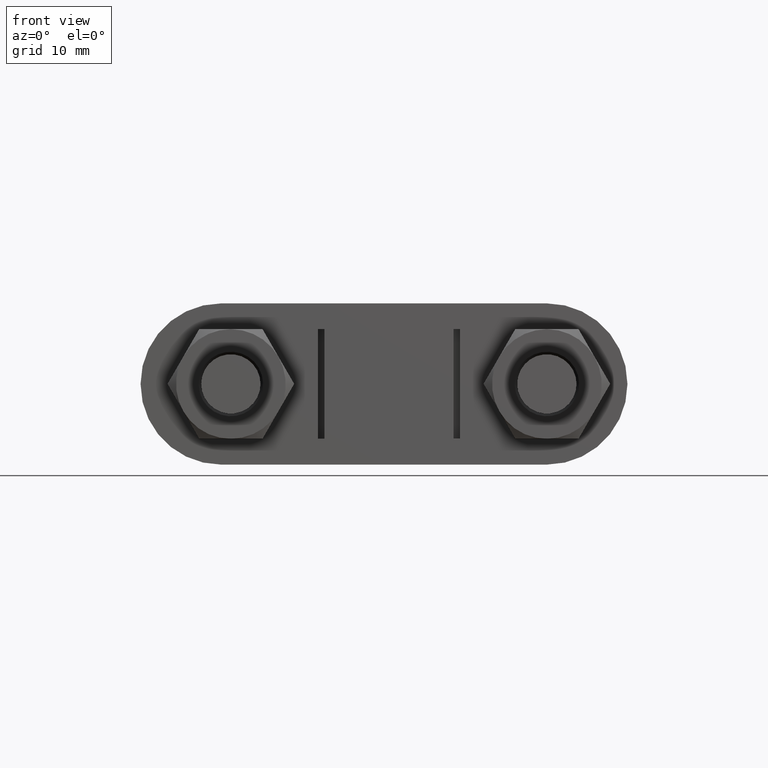
[diagram: clean part render]
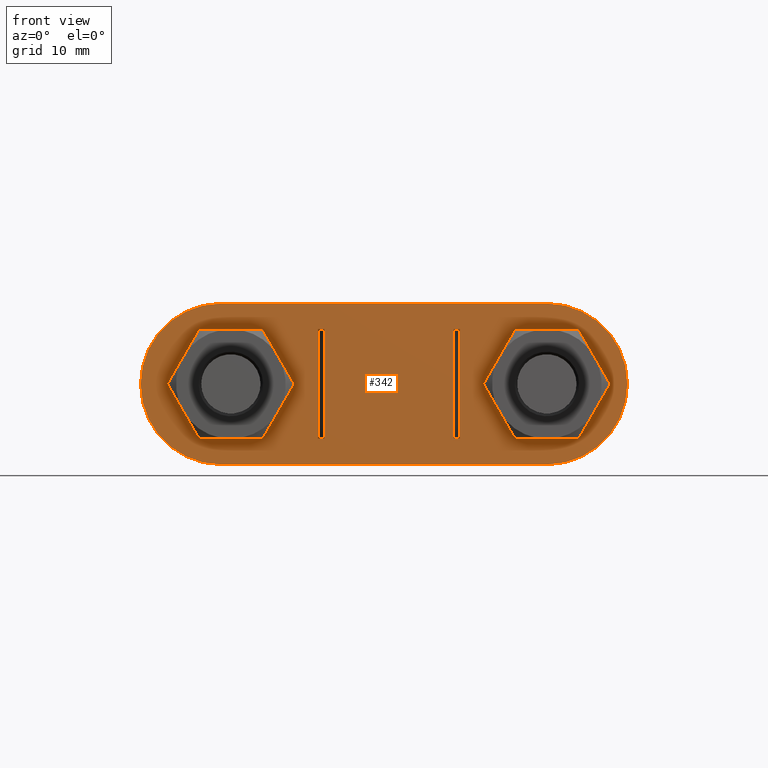
[diagram: same view with one face highlighted and labeled with its STEP entity id]
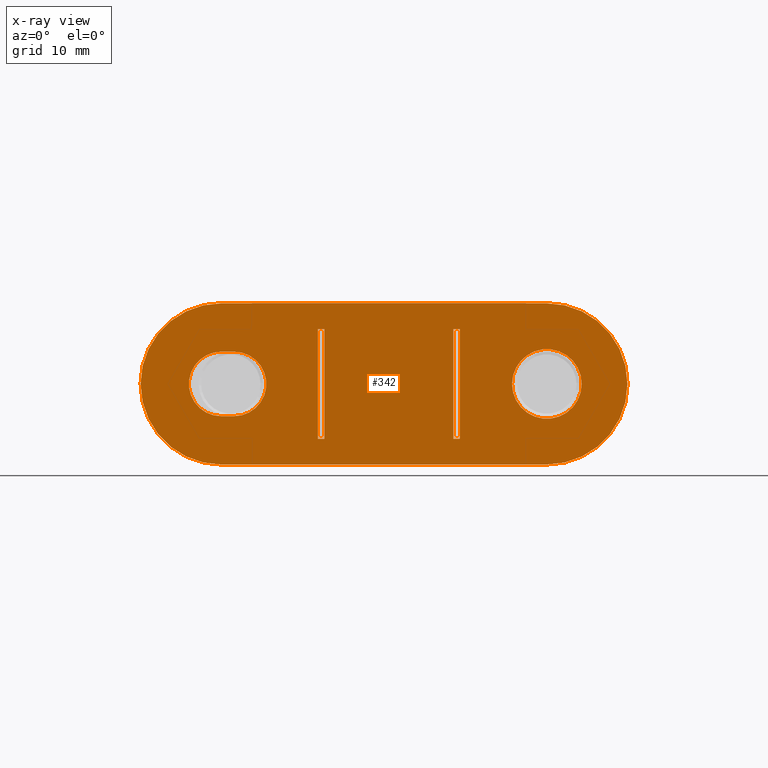
[diagram: x-ray of the same camera — body ghosted, the highlighted face saturated]
A machine part, front view. The second image highlights one B-rep face of the part: STEP entity #342.
The next image is the same camera in x-ray: the body ghosted, the highlighted face saturated — about 0% of this face is hidden behind the body in this view.
In plain terms, the highlighted planar face has unit normal (0, 1, -0).
Its self-contained STEP definition (entity closure, byte-faithful):
#342 = ADVANCED_FACE( '', ( #547, #548, #549, #550, #551 ), #552, .F. );
#547 = FACE_BOUND( '', #1475, .T. );
#548 = FACE_OUTER_BOUND( '', #1476, .T. );
#549 = FACE_BOUND( '', #1477, .T. );
#550 = FACE_BOUND( '', #1478, .T. );
#551 = FACE_BOUND( '', #1479, .T. );
#552 = PLANE( '', #1480 );
#1475 = EDGE_LOOP( '', ( #2094, #2095, #2096, #2097 ) );
#1476 = EDGE_LOOP( '', ( #2098, #2099, #2100, #2101, #2102, #2103 ) );
#1477 = EDGE_LOOP( '', ( #2104 ) );
#1478 = EDGE_LOOP( '', ( #2105, #2106, #2107, #2108 ) );
#1479 = EDGE_LOOP( '', ( #2109, #2110, #2111, #2112 ) );
#1480 = AXIS2_PLACEMENT_3D( '', #2113, #2114, #2115 );
#2094 = ORIENTED_EDGE( '', *, *, #2531, .F. );
#2095 = ORIENTED_EDGE( '', *, *, #2532, .T. );
#2096 = ORIENTED_EDGE( '', *, *, #2533, .T. );
#2097 = ORIENTED_EDGE( '', *, *, #2534, .F. );
#2098 = ORIENTED_EDGE( '', *, *, #2535, .F. );
#2099 = ORIENTED_EDGE( '', *, *, #2536, .F. );
#2100 = ORIENTED_EDGE( '', *, *, #2537, .F. );
#2101 = ORIENTED_EDGE( '', *, *, #2538, .F. );
#2102 = ORIENTED_EDGE( '', *, *, #2539, .F. );
#2103 = ORIENTED_EDGE( '', *, *, #2540, .F. );
#2104 = ORIENTED_EDGE( '', *, *, #2541, .T. );
#2105 = ORIENTED_EDGE( '', *, *, #2542, .F. );
#2106 = ORIENTED_EDGE( '', *, *, #2543, .F. );
#2107 = ORIENTED_EDGE( '', *, *, #2544, .F. );
#2108 = ORIENTED_EDGE( '', *, *, #2545, .F. );
#2109 = ORIENTED_EDGE( '', *, *, #2546, .T. );
#2110 = ORIENTED_EDGE( '', *, *, #2547, .T. );
#2111 = ORIENTED_EDGE( '', *, *, #2548, .F. );
#2112 = ORIENTED_EDGE( '', *, *, #2549, .F. );
#2113 = CARTESIAN_POINT( '', ( -26.0010000000000, 30.3000000000001, 3.06562700418712E-013 ) );
#2114 = DIRECTION( '', ( 1.88900066577584E-016, 1.00000000000000, -1.00538905774030E-016 ) );
#2115 = DIRECTION( '', ( 1.16573417585698E-014, 1.00538905774028E-016, 1.00000000000000 ) );
#2531 = EDGE_CURVE( '', #2865, #2866, #2867, .T. );
#2532 = EDGE_CURVE( '', #2865, #2868, #2869, .T. );
#2533 = EDGE_CURVE( '', #2868, #2870, #2871, .T. );
#2534 = EDGE_CURVE( '', #2866, #2870, #2872, .T. );
#2535 = EDGE_CURVE( '', #2873, #2874, #2875, .T. );
#2536 = EDGE_CURVE( '', #2876, #2873, #2877, .T. );
#2537 = EDGE_CURVE( '', #2878, #2876, #2879, .T. );
#2538 = EDGE_CURVE( '', #2880, #2878, #2881, .T. );
#2539 = EDGE_CURVE( '', #2882, #2880, #2883, .T. );
#2540 = EDGE_CURVE( '', #2874, #2882, #2884, .T. );
#2541 = EDGE_CURVE( '', #2885, #2885, #2886, .T. );
#2542 = EDGE_CURVE( '', #2887, #2888, #2889, .T. );
#2543 = EDGE_CURVE( '', #2890, #2887, #2891, .T. );
#2544 = EDGE_CURVE( '', #2892, #2890, #2893, .T. );
#2545 = EDGE_CURVE( '', #2888, #2892, #2894, .T. );
#2546 = EDGE_CURVE( '', #2895, #2896, #2897, .T. );
#2547 = EDGE_CURVE( '', #2896, #2898, #2899, .T. );
#2548 = EDGE_CURVE( '', #2900, #2898, #2901, .T. );
#2549 = EDGE_CURVE( '', #2895, #2900, #2902, .T. );
#2865 = VERTEX_POINT( '', #3603 );
#2866 = VERTEX_POINT( '', #3604 );
#2867 = LINE( '', #3605, #3606 );
#2868 = VERTEX_POINT( '', #3607 );
#2869 = LINE( '', #3608, #3609 );
#2870 = VERTEX_POINT( '', #3610 );
#2871 = LINE( '', #3611, #3612 );
#2872 = LINE( '', #3613, #3614 );
#2873 = VERTEX_POINT( '', #3615 );
#2874 = VERTEX_POINT( '', #3616 );
#2875 = CIRCLE( '', #3617, 12.5000000000000 );
#2876 = VERTEX_POINT( '', #3618 );
#2877 = CIRCLE( '', #3619, 12.5000000000000 );
#2878 = VERTEX_POINT( '', #3620 );
#2879 = LINE( '', #3621, #3622 );
#2880 = VERTEX_POINT( '', #3623 );
#2881 = CIRCLE( '', #3624, 12.5000000000000 );
#2882 = VERTEX_POINT( '', #3625 );
#2883 = CIRCLE( '', #3626, 12.5000000000000 );
#2884 = LINE( '', #3627, #3628 );
#2885 = VERTEX_POINT( '', #3629 );
#2886 = CIRCLE( '', #3630, 5.40000000000000 );
#2887 = VERTEX_POINT( '', #3631 );
#2888 = VERTEX_POINT( '', #3632 );
#2889 = CIRCLE( '', #3633, 5.00000000000000 );
#2890 = VERTEX_POINT( '', #3634 );
#2891 = LINE( '', #3635, #3636 );
#2892 = VERTEX_POINT( '', #3637 );
#2893 = CIRCLE( '', #3638, 5.00000000000000 );
#2894 = LINE( '', #3639, #3640 );
#2895 = VERTEX_POINT( '', #3641 );
#2896 = VERTEX_POINT( '', #3642 );
#2897 = LINE( '', #3643, #3644 );
#2898 = VERTEX_POINT( '', #3645 );
#2899 = LINE( '', #3646, #3647 );
#2900 = VERTEX_POINT( '', #3648 );
#2901 = LINE( '', #3649, #3650 );
#2902 = LINE( '', #3651, #3652 );
#3603 = CARTESIAN_POINT( '', ( -11.0010000000001, 30.3000000000000, -8.49999999999987 ) );
#3604 = CARTESIAN_POINT( '', ( -10.0010000000001, 30.3000000000000, -8.49999999999988 ) );
#3605 = CARTESIAN_POINT( '', ( -11.0010000000001, 30.3000000000000, -8.49999999999987 ) );
#3606 = VECTOR( '', #4057, 1000.00000000000 );
#3607 = CARTESIAN_POINT( '', ( -11.0009999999999, 30.3000000000000, 8.50000000000013 ) );
#3608 = CARTESIAN_POINT( '', ( -11.0010000000001, 30.3000000000000, -8.49999999999987 ) );
#3609 = VECTOR( '', #4058, 1000.00000000000 );
#3610 = CARTESIAN_POINT( '', ( -10.0009999999999, 30.3000000000000, 8.50000000000012 ) );
#3611 = CARTESIAN_POINT( '', ( -11.0009999999999, 30.3000000000000, 8.50000000000013 ) );
#3612 = VECTOR( '', #4059, 1000.00000000000 );
#3613 = CARTESIAN_POINT( '', ( -10.0010000000001, 30.3000000000000, -8.49999999999988 ) );
#3614 = VECTOR( '', #4060, 1000.00000000000 );
#3615 = CARTESIAN_POINT( '', ( -38.5010000000000, 30.3000000000001, 4.52279472400835E-013 ) );
#3616 = CARTESIAN_POINT( '', ( -26.0009999999999, 30.3000000000001, 12.5000000000003 ) );
#3617 = AXIS2_PLACEMENT_3D( '', #4061, #4062, #4063 );
#3618 = CARTESIAN_POINT( '', ( -26.0010000000002, 30.3000000000000, -12.4999999999997 ) );
#3619 = AXIS2_PLACEMENT_3D( '', #4064, #4065, #4066 );
#3620 = CARTESIAN_POINT( '', ( 24.4989999999999, 30.3000000000000, -12.5000000000003 ) );
#3621 = CARTESIAN_POINT( '', ( 24.4989999999999, 30.3000000000000, -12.5000000000003 ) );
#3622 = VECTOR( '', #4067, 1000.00000000000 );
#3623 = CARTESIAN_POINT( '', ( 36.9990000000000, 30.3000000000000, -4.20910936467282E-013 ) );
#3624 = AXIS2_PLACEMENT_3D( '', #4068, #4069, #4070 );
#3625 = CARTESIAN_POINT( '', ( 24.4990000000002, 30.3000000000000, 12.4999999999997 ) );
#3626 = AXIS2_PLACEMENT_3D( '', #4071, #4072, #4073 );
#3627 = CARTESIAN_POINT( '', ( -26.0009999999999, 30.3000000000001, 12.5000000000003 ) );
#3628 = VECTOR( '', #4074, 1000.00000000000 );
#3629 = CARTESIAN_POINT( '', ( 29.8990000000000, 30.3000000000000, -3.43347980409366E-013 ) );
#3630 = AXIS2_PLACEMENT_3D( '', #4075, #4076, #4077 );
#3631 = CARTESIAN_POINT( '', ( -26.0010000000000, 30.2999984999318, 5.00000000000031 ) );
#3632 = CARTESIAN_POINT( '', ( -26.0010000000001, 30.2999984999318, -4.99999999999969 ) );
#3633 = AXIS2_PLACEMENT_3D( '', #4078, #4079, #4080 );
#3634 = CARTESIAN_POINT( '', ( -24.0009999999999, 30.2999984999318, 5.00000000000029 ) );
#3635 = CARTESIAN_POINT( '', ( -24.0009999999999, 30.2999984999318, 5.00000000000029 ) );
#3636 = VECTOR( '', #4081, 1000.00000000000 );
#3637 = CARTESIAN_POINT( '', ( -24.0010000000000, 30.2999984999318, -4.99999999999971 ) );
#3638 = AXIS2_PLACEMENT_3D( '', #4082, #4083, #4084 );
#3639 = CARTESIAN_POINT( '', ( -26.0010000000001, 30.2999984999318, -4.99999999999969 ) );
#3640 = VECTOR( '', #4085, 1000.00000000000 );
#3641 = CARTESIAN_POINT( '', ( 10.9989999999999, 30.3000000000000, -8.50000000000013 ) );
#3642 = CARTESIAN_POINT( '', ( 9.99899999999991, 30.3000000000000, -8.50000000000012 ) );
#3643 = CARTESIAN_POINT( '', ( 10.9989999999999, 30.3000000000000, -8.50000000000013 ) );
#3644 = VECTOR( '', #4086, 1000.00000000000 );
#3645 = CARTESIAN_POINT( '', ( 9.99900000000011, 30.3000000000000, 8.49999999999989 ) );
#3646 = CARTESIAN_POINT( '', ( 9.99899999999991, 30.3000000000000, -8.50000000000012 ) );
#3647 = VECTOR( '', #4087, 1000.00000000000 );
#3648 = CARTESIAN_POINT( '', ( 10.9990000000001, 30.3000000000000, 8.49999999999987 ) );
#3649 = CARTESIAN_POINT( '', ( 10.9990000000001, 30.3000000000000, 8.49999999999988 ) );
#3650 = VECTOR( '', #4088, 1000.00000000000 );
#3651 = CARTESIAN_POINT( '', ( 10.9989999999999, 30.3000000000000, -8.50000000000013 ) );
#3652 = VECTOR( '', #4089, 1000.00000000000 );
#4057 = DIRECTION( '', ( 1.00000000000000, -1.88900066577585E-016, -1.16573417585698E-014 ) );
#4058 = DIRECTION( '', ( 1.18177092592765E-014, 3.78303564880801E-016, 1.00000000000000 ) );
#4059 = DIRECTION( '', ( 1.00000000000000, -1.88900066577585E-016, -1.16573417585698E-014 ) );
#4060 = DIRECTION( '', ( 1.18177092592765E-014, 3.78303564880801E-016, 1.00000000000000 ) );
#4061 = CARTESIAN_POINT( '', ( -26.0010000000000, 30.3000000000001, 3.06562700418712E-013 ) );
#4062 = DIRECTION( '', ( 1.88900066577584E-016, 1.00000000000000, -1.00538905774030E-016 ) );
#4063 = DIRECTION( '', ( -1.00000000000000, 1.88900066577585E-016, 1.15185638804917E-014 ) );
#4064 = CARTESIAN_POINT( '', ( -26.0010000000000, 30.3000000000001, 3.10032147370666E-013 ) );
#4065 = DIRECTION( '', ( 1.88900066577584E-016, 1.00000000000000, -1.00538905774030E-016 ) );
#4066 = DIRECTION( '', ( -1.13797860024136E-014, -1.00538905774028E-016, -1.00000000000000 ) );
#4067 = DIRECTION( '', ( -1.00000000000000, 1.88900066577585E-016, 1.16573417585698E-014 ) );
#4068 = CARTESIAN_POINT( '', ( 24.4990000000000, 30.3000000000000, -2.78663611437113E-013 ) );
#4069 = DIRECTION( '', ( 1.88900066577584E-016, 1.00000000000000, -1.00538905774030E-016 ) );
#4070 = DIRECTION( '', ( 1.00000000000000, -1.88900066577585E-016, -1.15185638804917E-014 ) );
#4071 = CARTESIAN_POINT( '', ( 24.4990000000000, 30.3000000000000, -2.82133058389066E-013 ) );
#4072 = DIRECTION( '', ( 1.88900066577584E-016, 1.00000000000000, -1.00538905774030E-016 ) );
#4073 = DIRECTION( '', ( 1.11022302462573E-014, 1.00538905774028E-016, 1.00000000000000 ) );
#4074 = DIRECTION( '', ( 1.00000000000000, -1.88900066577585E-016, -1.16573417585698E-014 ) );
#4075 = CARTESIAN_POINT( '', ( 24.4990000000000, 30.3000000000000, -2.80398334913089E-013 ) );
#4076 = DIRECTION( '', ( 1.88900066577584E-016, 1.00000000000000, -1.00538905774030E-016 ) );
#4077 = DIRECTION( '', ( 1.00000000000000, -1.88900066577585E-016, -1.16573417585698E-014 ) );
#4078 = CARTESIAN_POINT( '', ( -26.0010000000000, 30.2999984999318, 3.08297424045504E-013 ) );
#4079 = DIRECTION( '', ( -1.88900066577584E-016, -1.00000000000000, 1.00538905774030E-016 ) );
#4080 = DIRECTION( '', ( 1.16573417585698E-014, 1.00538905774028E-016, 1.00000000000000 ) );
#4081 = DIRECTION( '', ( -1.00000000000000, 1.88900066577585E-016, 1.16573417585698E-014 ) );
#4082 = CARTESIAN_POINT( '', ( -24.0010000000000, 30.2999984999318, 2.84982740528364E-013 ) );
#4083 = DIRECTION( '', ( -1.88900066577584E-016, -1.00000000000000, 1.00538905774030E-016 ) );
#4084 = DIRECTION( '', ( -1.16573417585698E-014, -1.00538905774028E-016, -1.00000000000000 ) );
#4085 = DIRECTION( '', ( 1.00000000000000, -1.88900066577585E-016, -1.16573417585698E-014 ) );
#4086 = DIRECTION( '', ( -1.00000000000000, 3.11360701959823E-016, 1.16573417585698E-014 ) );
#4087 = DIRECTION( '', ( 1.14969742578632E-014, 3.78303564880802E-016, 1.00000000000000 ) );
#4088 = DIRECTION( '', ( -1.00000000000000, 3.11360701959823E-016, 1.16573417585698E-014 ) );
#4089 = DIRECTION( '', ( 1.14969742578632E-014, 3.78303564880802E-016, 1.00000000000000 ) );